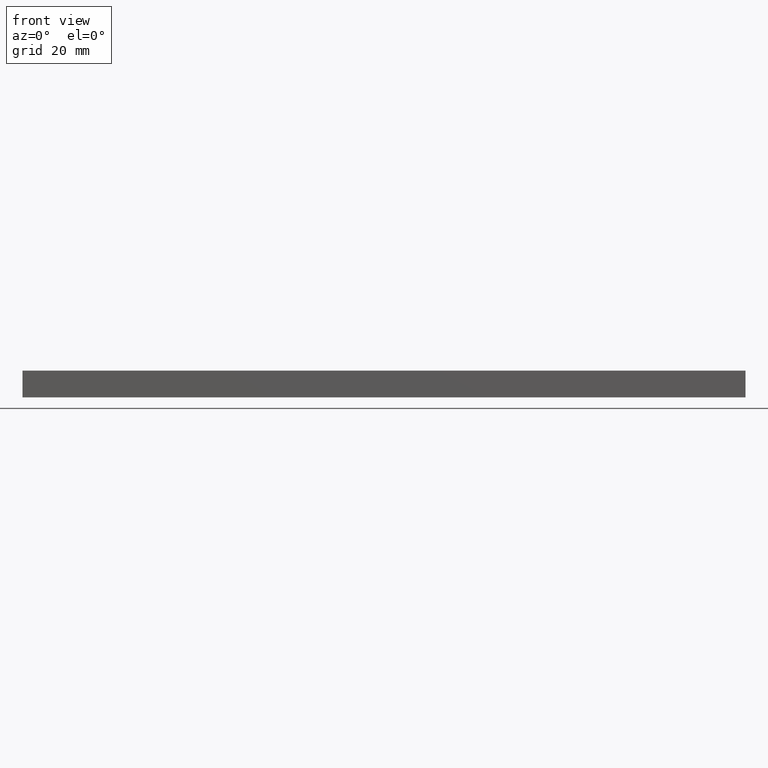
[diagram: clean part render]
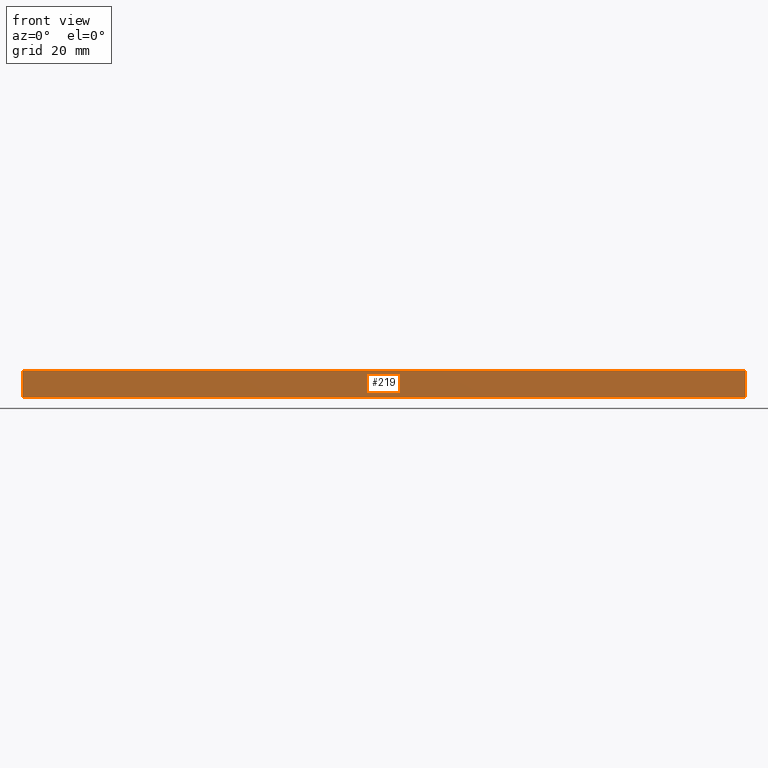
[diagram: same view with one face highlighted and labeled with its STEP entity id]
A machine part, front view. The second image highlights one B-rep face of the part: STEP entity #219.
In plain terms, the highlighted planar face has unit normal (0, -1, 0).
Its self-contained STEP definition (entity closure, byte-faithful):
#53=FACE_OUTER_BOUND('',#67,.T.);
#67=EDGE_LOOP('',(#171,#172,#173,#174));
#100=LINE('',#339,#112);
#102=LINE('',#343,#114);
#103=LINE('',#345,#115);
#104=LINE('',#346,#116);
#112=VECTOR('',#270,5.);
#114=VECTOR('',#274,135.);
#115=VECTOR('',#275,5.);
#116=VECTOR('',#276,135.);
#123=VERTEX_POINT('',#336);
#124=VERTEX_POINT('',#338);
#125=VERTEX_POINT('',#342);
#126=VERTEX_POINT('',#344);
#144=EDGE_CURVE('',#123,#124,#100,.T.);
#146=EDGE_CURVE('',#123,#125,#102,.T.);
#147=EDGE_CURVE('',#125,#126,#103,.T.);
#148=EDGE_CURVE('',#124,#126,#104,.T.);
#171=ORIENTED_EDGE('',*,*,#146,.T.);
#172=ORIENTED_EDGE('',*,*,#147,.T.);
#173=ORIENTED_EDGE('',*,*,#148,.F.);
#174=ORIENTED_EDGE('',*,*,#144,.F.);
#213=PLANE('',#235);
#219=ADVANCED_FACE('',(#53),#213,.T.);
#235=AXIS2_PLACEMENT_3D('',#341,#272,#273);
#270=DIRECTION('',(0.,2.58095700367278E-8,1.));
#272=DIRECTION('center_axis',(1.224647E-16,-1.,2.580957E-8));
#273=DIRECTION('ref_axis',(0.,-2.58095699479099E-8,-1.));
#274=DIRECTION('',(1.,0.,0.));
#275=DIRECTION('',(0.,2.58095709249062E-8,1.));
#276=DIRECTION('',(1.,0.,0.));
#336=CARTESIAN_POINT('',(-135.,-9.99999999999956,2.58095697E-7));
#338=CARTESIAN_POINT('',(-135.,-9.99999987095171,5.0000002580957));
#339=CARTESIAN_POINT('',(-135.,-9.99999999999956,2.58095697E-7));
#341=CARTESIAN_POINT('Origin',(-135.,-9.99999999999956,2.58095697E-7));
#342=CARTESIAN_POINT('',(5.589399E-16,-9.99999999999954,2.58095697E-7));
#343=CARTESIAN_POINT('',(-135.,-9.99999999999956,2.58095697E-7));
#344=CARTESIAN_POINT('',(5.589399E-16,-9.99999987095169,5.0000002580957));
#345=CARTESIAN_POINT('',(5.589399E-16,-9.99999999999954,2.58095697E-7));
#346=CARTESIAN_POINT('',(-135.,-9.99999987095171,5.0000002580957));